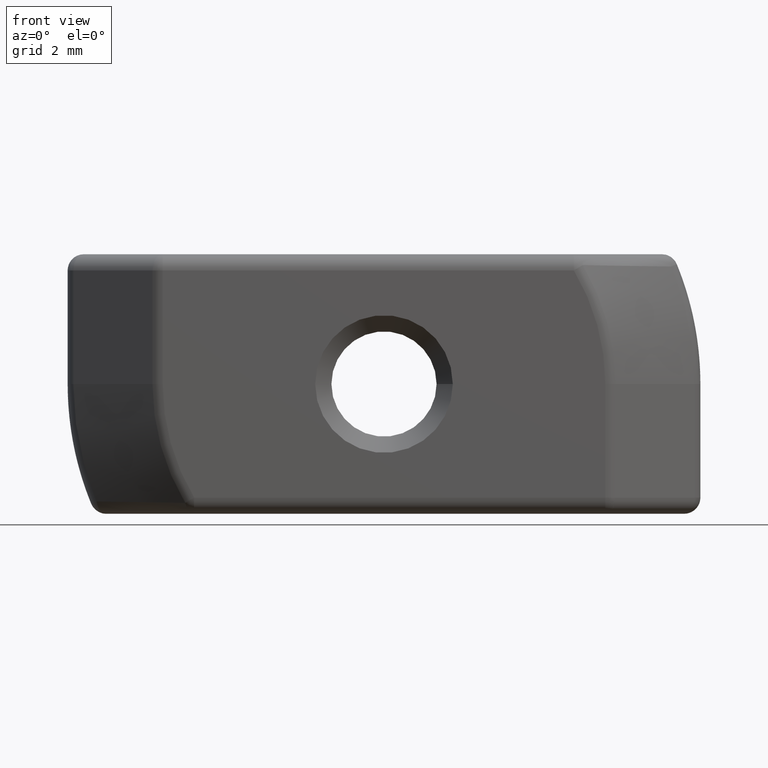
[diagram: clean part render]
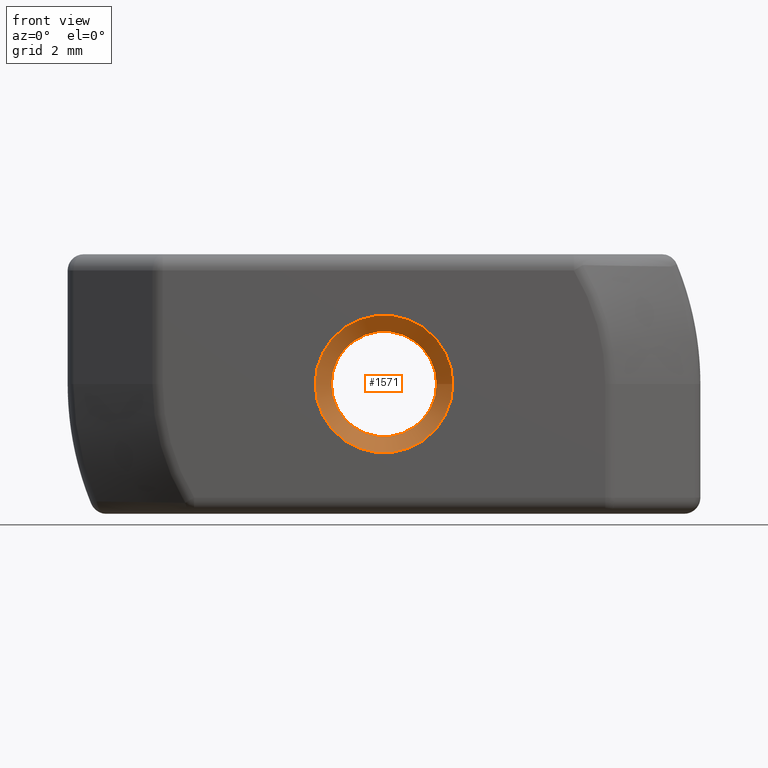
[diagram: same view with one face highlighted and labeled with its STEP entity id]
A machine part, front view. The second image highlights one B-rep face of the part: STEP entity #1571.
In plain terms, the highlighted conical surface has half-angle 45 deg.
Its self-contained STEP definition (entity closure, byte-faithful):
#429=FACE_BOUND('',#537,.T.);
#434=FACE_OUTER_BOUND('',#536,.T.);
#536=EDGE_LOOP('',(#1091));
#537=EDGE_LOOP('',(#1092));
#636=CIRCLE('',#1673,1.621);
#639=CIRCLE('',#1678,2.121);
#692=VERTEX_POINT('',#2420);
#699=VERTEX_POINT('',#2436);
#840=EDGE_CURVE('',#692,#692,#636,.T.);
#847=EDGE_CURVE('',#699,#699,#639,.T.);
#1091=ORIENTED_EDGE('',*,*,#840,.T.);
#1092=ORIENTED_EDGE('',*,*,#847,.T.);
#1565=CONICAL_SURFACE('',#1677,1.871,45.);
#1571=ADVANCED_FACE('',(#434,#429),#1565,.F.);
#1673=AXIS2_PLACEMENT_3D('',#2421,#1883,#1884);
#1677=AXIS2_PLACEMENT_3D('',#2435,#1895,#1896);
#1678=AXIS2_PLACEMENT_3D('',#2437,#1897,#1898);
#1883=DIRECTION('center_axis',(0.,1.,0.));
#1884=DIRECTION('ref_axis',(-1.,0.,0.));
#1895=DIRECTION('center_axis',(0.,-1.,0.));
#1896=DIRECTION('ref_axis',(-1.,0.,0.));
#1897=DIRECTION('center_axis',(0.,-1.,0.));
#1898=DIRECTION('ref_axis',(-1.,0.,0.));
#2420=CARTESIAN_POINT('',(1.621,-4.8,1.18926353463966E-15));
#2421=CARTESIAN_POINT('Origin',(1.66533453693773E-15,-4.8,1.38777878078145E-15));
#2435=CARTESIAN_POINT('Origin',(1.66533453693773E-15,-5.05,1.38777878078145E-15));
#2436=CARTESIAN_POINT('',(2.121,-5.3,1.6475263668806E-15));
#2437=CARTESIAN_POINT('Origin',(1.66533453693773E-15,-5.3,1.38777878078145E-15));